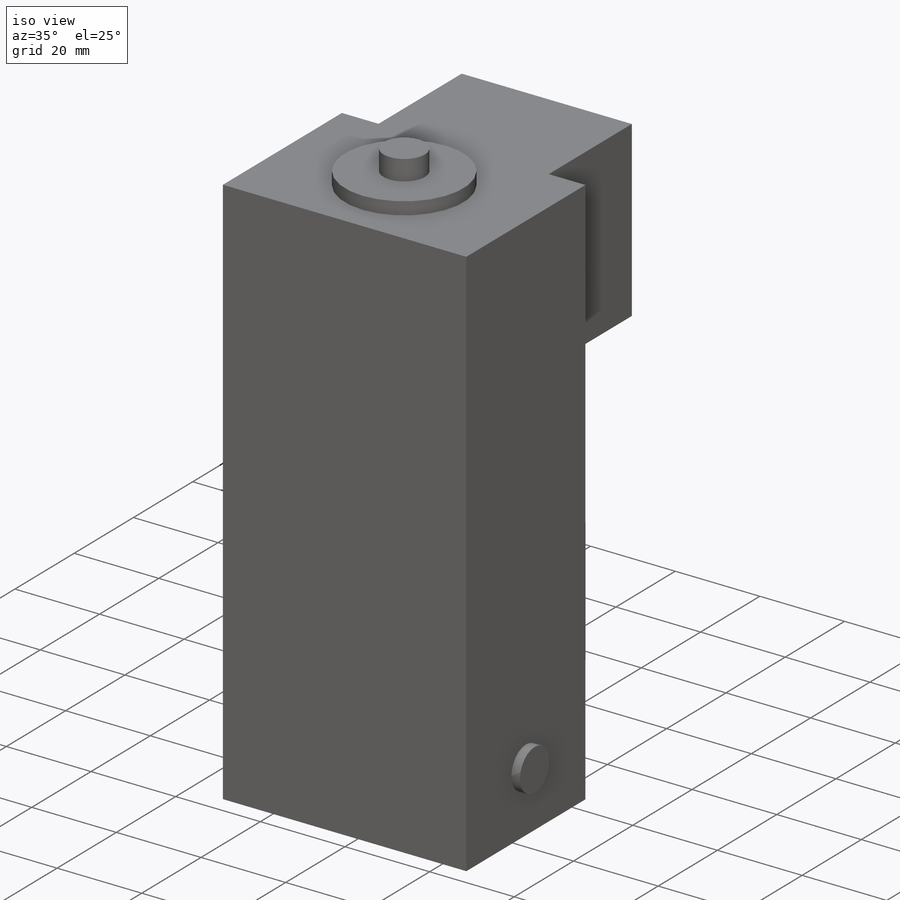
[diagram: iso view]
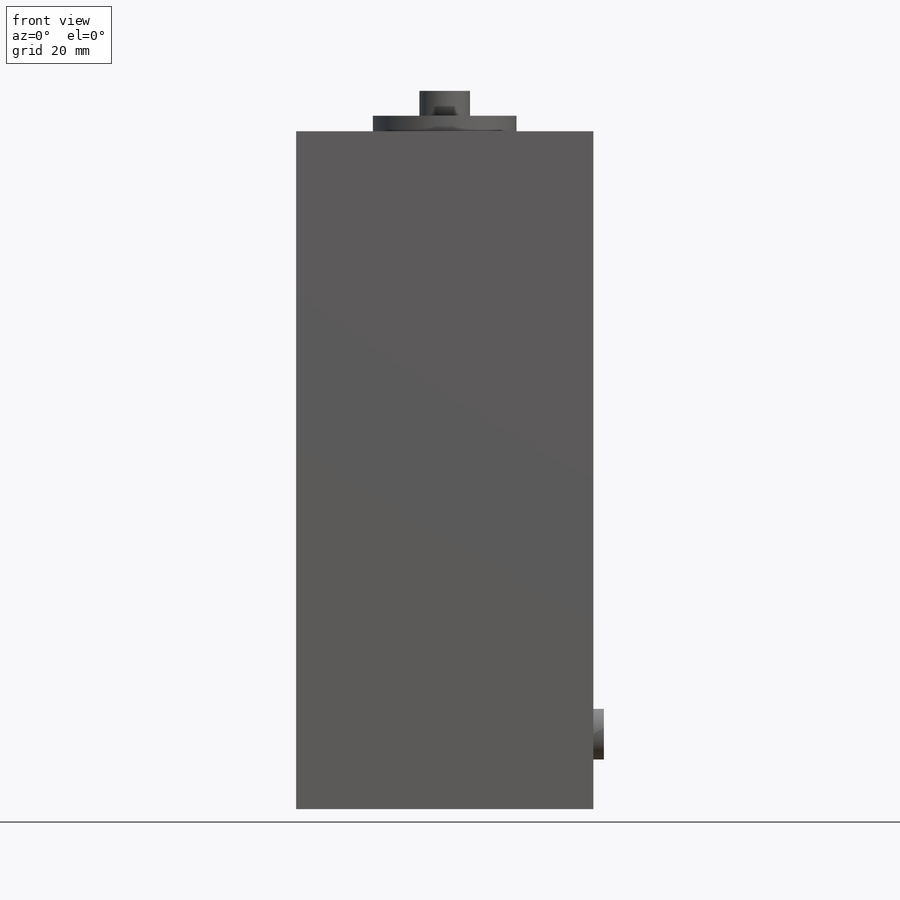
[diagram: front view]
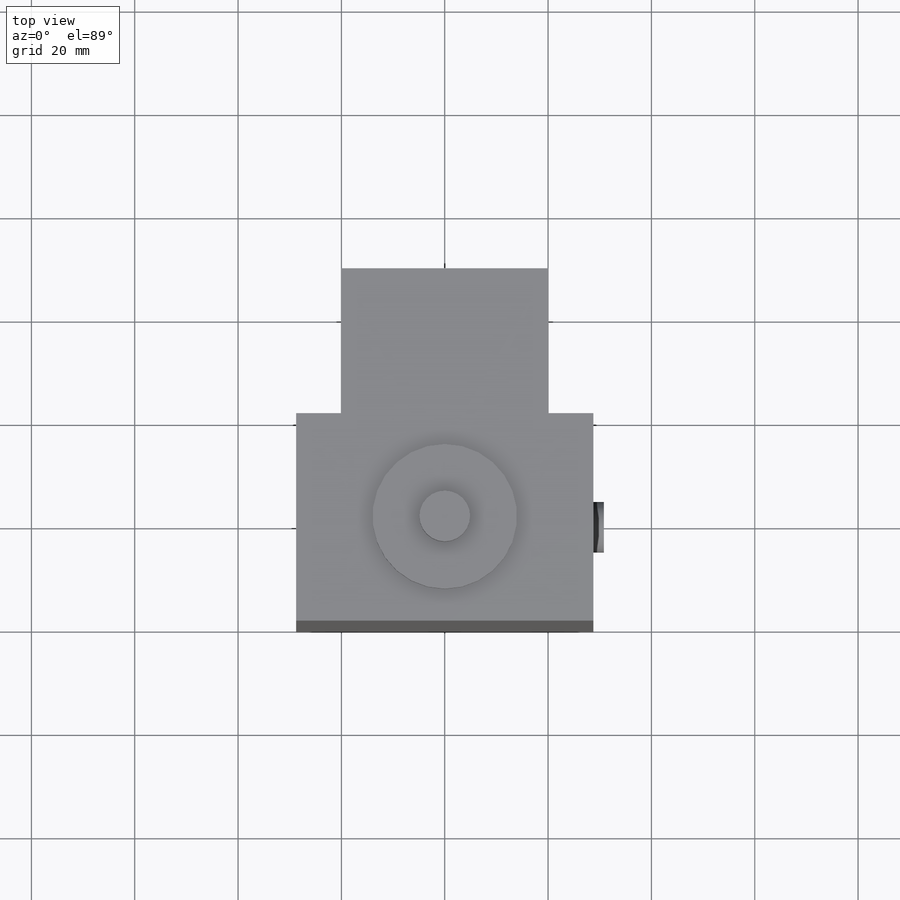
[diagram: top view]
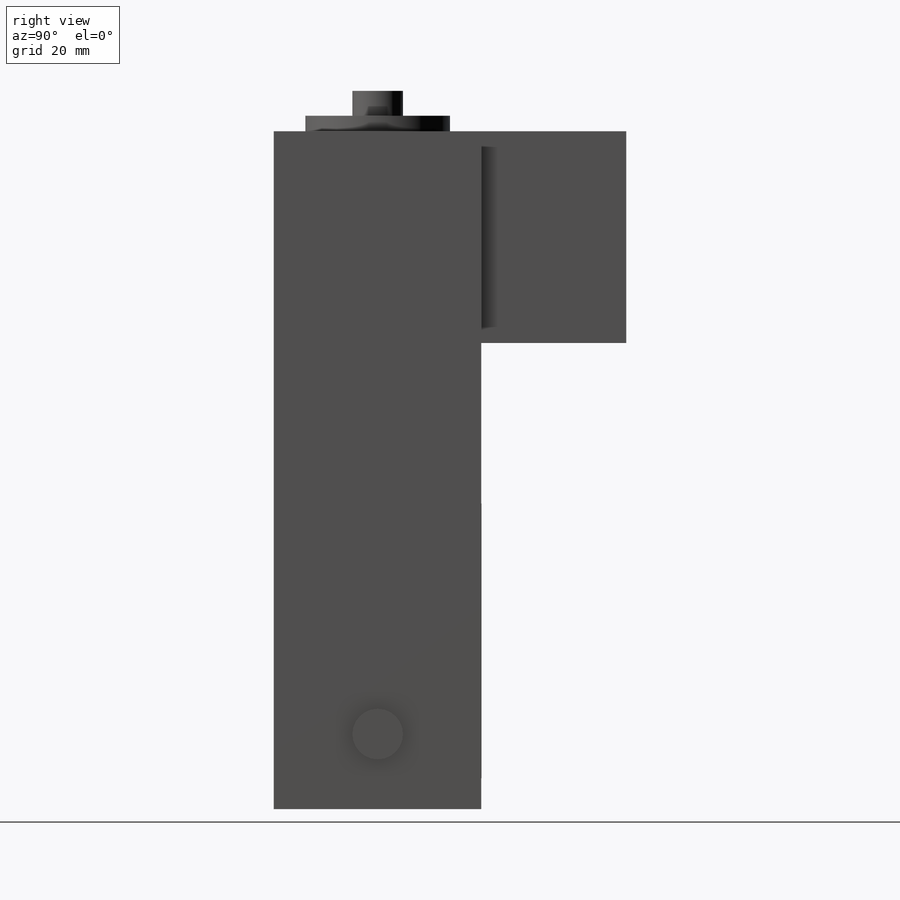
[diagram: right view]
SOLIDWORKS PART (.sldprt)
format: sldprt  version: not decoded by parser v0  size: 338,944 bytes
history: native  units: mm
features: sketch x10, extrude x10, mirror x5, plane x3, material x1, chamfer x1 (+11 scaffold rows collapsed)
feature tree (41):
  scaffold x11  (default folders/planes/origin — collapsed)
  material  "Material <not specified>"
  plane  "Plane1"  Offset=14.5mm
  sketch  "Sketch1"  dims[D1=46.0mm D2=40.2mm]
  extrude  "Boss-Extrude1"  Depth=65.1mm
  sketch  "Sketch3"  dims[c1.D2=28.0mm c1.D1=90.525mm c1.D3=90.525mm c2.D1=14.5mm]
  extrude  "Boss-Extrude2"  Depth=3mm
  sketch  "Sketch4"  dims[D1=9.8mm]
  extrude  "Boss-Extrude3"  Depth=4.8mm
  sketch  "Sketch7"  dims[D1=35.4mm]
  extrude  "Boss-Extrude6"  Depth=1mm
  plane  "Plane3"
  mirror  "Mirror1"
  chamfer  "Chamfer1"  Distance=6mm
  mirror  "Mirror3"
  mirror  "Mirror8"
  sketch  "Sketch8"  dims[D1=29.0mm D2=16.0mm D3=29.0mm D4=100.0mm]
  extrude  "Boss-Extrude7"  Depth=4.7625mm
  mirror  "Mirror4"
  plane  "Plane2"  Offset=1.5mm
  sketch  "Sketch9"  dims[D1=7.1mm D2=40.2mm D3=61.1mm]
  extrude  "Boss-Extrude8"  Depth=41mm
  sketch  "Sketch10"  dims[D1=38.0mm D2=1.5mm]
  extrude  "Boss-Extrude9"  Depth=9.3mm
  mirror  "Mirror6"
  sketch  "Sketch11"  dims[D2=28.0mm D1=13.0mm]
  extrude  "Boss-Extrude10"  Depth=3mm
  sketch  "Sketch12"  dims[D1=9.8mm]
  extrude  "Boss-Extrude11"  Depth=4.8mm
  sketch  "Sketch13"
  extrude  "Boss-Extrude12"  [1 undecoded]
decode coverage: 19 of 26 modeling features carry decoded parameters
note: 1 parameter value undecoded
note: suppression state not decoded; provenance and decode notes live in map.json
